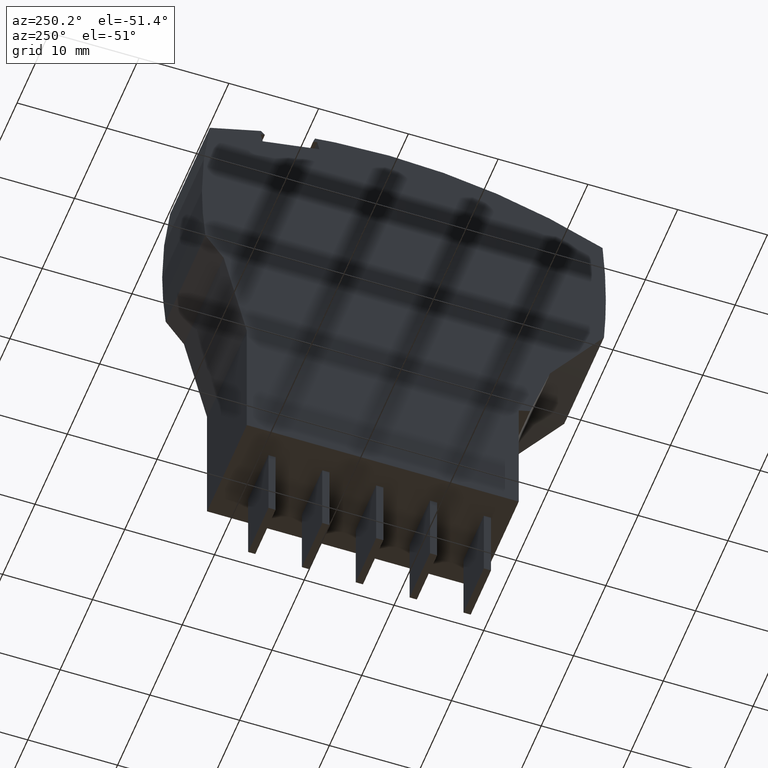
[diagram: clean part render]
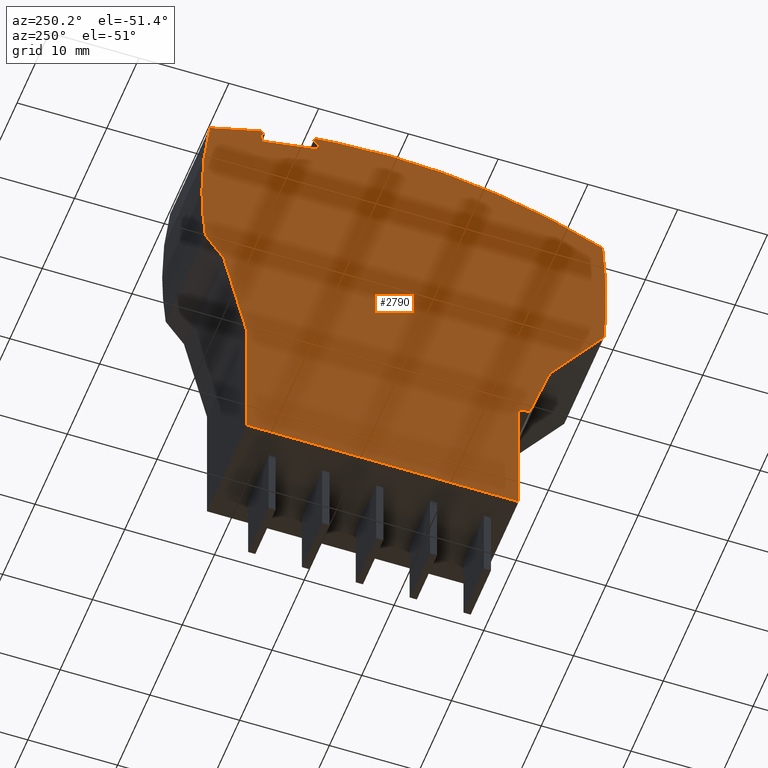
[diagram: same view with one face highlighted and labeled with its STEP entity id]
A machine part, auxiliary view. The second image highlights one B-rep face of the part: STEP entity #2790.
In plain terms, the highlighted planar face has unit normal (1, 0, 0).
Its self-contained STEP definition (entity closure, byte-faithful):
#120=CARTESIAN_POINT('',(-19.8336208526797,37.8042175914864,
53.6700000001206));
#130=VERTEX_POINT('',#120);
#280=CARTESIAN_POINT('',(-14.1362190122504,39.688519976563,
53.6700000001206));
#290=VERTEX_POINT('',#280);
#320=CARTESIAN_POINT('',(-19.8336208526797,37.8042175914864,
53.6700000001206));
#330=DIRECTION('',(0.949422155246101,0.314002501785972,0.));
#340=VECTOR('',#330,1.);
#350=LINE('',#320,#340);
#360=EDGE_CURVE('',#130,#290,#350,.T.);
#410=CARTESIAN_POINT('',(0.182167226154589,21.7394412001866,
53.6700000001206));
#420=DIRECTION('',(0.,0.,-1.));
#430=DIRECTION('',(-1.,1.11123366772477E-12,0.));
#440=AXIS2_PLACEMENT_3D('',#410,#420,#430);
#450=PLANE('',#440);
#460=CARTESIAN_POINT('',(24.8300921415137,21.7394412001592,
53.6700000001206));
#470=DIRECTION('',(0.0630914327902522,-0.99800775102625,-0.));
#480=VECTOR('',#470,1.);
#490=LINE('',#460,#480);
#500=CARTESIAN_POINT('',(23.9179771729861,36.1676728658394,
53.6700000001206));
#510=VERTEX_POINT('',#500);
#520=CARTESIAN_POINT('',(24.1936064860476,31.8076483953254,
53.6700000001206));
#530=VERTEX_POINT('',#520);
#540=EDGE_CURVE('',#510,#530,#490,.T.);
#550=ORIENTED_EDGE('',*,*,#540,.F.);
#560=CARTESIAN_POINT('',(24.1936064860476,31.8076483953255,
53.6700000001206));
#570=DIRECTION('',(0.0210429014288442,-0.999778573634911,-0.));
#580=VECTOR('',#570,1.);
#590=LINE('',#560,#580);
#600=CARTESIAN_POINT('',(24.2821672261611,27.5999999999697,
53.6700000001206));
#610=VERTEX_POINT('',#600);
#620=EDGE_CURVE('',#530,#610,#590,.T.);
#630=ORIENTED_EDGE('',*,*,#620,.F.);
#640=CARTESIAN_POINT('',(24.2821672261611,27.5999999999697,
53.6700000001206));
#650=DIRECTION('',(-0.0160067280420585,-0.999871884121855,0.));
#660=VECTOR('',#650,1.);
#670=LINE('',#640,#660);
#680=CARTESIAN_POINT('',(24.2309241576422,24.3990645349846,
53.6700000001206));
#690=VERTEX_POINT('',#680);
#700=EDGE_CURVE('',#610,#690,#670,.T.);
#710=ORIENTED_EDGE('',*,*,#700,.F.);
#720=CARTESIAN_POINT('',(24.2309241576422,24.3990645349846,
53.6700000001206));
#730=DIRECTION('',(-0.0480037794467058,-0.998847154052527,0.));
#740=VECTOR('',#730,1.);
#750=LINE('',#720,#740);
#760=CARTESIAN_POINT('',(24.077247469134,21.2014095851065,
53.6700000001206));
#770=VERTEX_POINT('',#760);
#780=EDGE_CURVE('',#690,#770,#750,.T.);
#790=ORIENTED_EDGE('',*,*,#780,.F.);
#800=CARTESIAN_POINT('',(18.4679302965551,13.1904744459233,
53.6700000001206));
#810=DIRECTION('',(-0.573576436351989,-0.819152044288332,0.));
#820=VECTOR('',#810,1.);
#830=LINE('',#800,#820);
#840=CARTESIAN_POINT('',(18.0708839005865,12.6234334269378,
53.6700000001206));
#850=VERTEX_POINT('',#840);
#860=EDGE_CURVE('',#770,#850,#830,.T.);
#870=ORIENTED_EDGE('',*,*,#860,.F.);
#880=CARTESIAN_POINT('',(17.5006653642924,10.7583326343994,
53.6700000001206));
#890=DIRECTION('',(0.292371704723776,0.956304755962718,0.));
#900=VECTOR('',#890,1.);
#910=LINE('',#880,#900);
#920=CARTESIAN_POINT('',(15.8466181170123,5.34818786455774,
53.6700000001206));
#930=VERTEX_POINT('',#920);
#940=EDGE_CURVE('',#930,#850,#910,.T.);
#950=ORIENTED_EDGE('',*,*,#940,.T.);
#960=CARTESIAN_POINT('',(0.182167226130205,-0.204116970032334,
53.6700000001206));
#970=DIRECTION('',(0.942542393209373,0.334086571120643,0.));
#980=VECTOR('',#970,1.);
#990=LINE('',#960,#980);
#1000=CARTESIAN_POINT('',(14.5821672261359,4.89999999998335,
53.6700000001206));
#1010=VERTEX_POINT('',#1000);
#1020=EDGE_CURVE('',#1010,#930,#990,.T.);
#1030=ORIENTED_EDGE('',*,*,#1020,.T.);
#1040=CARTESIAN_POINT('',(14.5821672261189,-10.4000000000194,
53.6700000001206));
#1050=DIRECTION('',(1.11123366772477E-12,1.,0.));
#1060=VECTOR('',#1050,1.);
#1070=LINE('',#1040,#1060);
#1080=CARTESIAN_POINT('',(14.5821672261189,-10.4000000000194,
53.6700000001206));
#1090=VERTEX_POINT('',#1080);
#1100=EDGE_CURVE('',#1090,#1010,#1070,.T.);
#1110=ORIENTED_EDGE('',*,*,#1100,.T.);
#1120=CARTESIAN_POINT('',(-5.08695122850913,-10.3999999999975,
53.6700000001206));
#1130=DIRECTION('',(-1.,1.11123366772477E-12,0.));
#1140=VECTOR('',#1130,1.);
#1150=LINE('',#1120,#1140);
#1160=CARTESIAN_POINT('',(-15.7178327738811,-10.3999999999857,
53.6700000001206));
#1170=VERTEX_POINT('',#1160);
#1180=EDGE_CURVE('',#1090,#1170,#1150,.T.);
#1190=ORIENTED_EDGE('',*,*,#1180,.F.);
#1200=CARTESIAN_POINT('',(-15.7178327738753,-5.17654999421573,
53.6700000001206));
#1210=DIRECTION('',(1.11123366772477E-12,1.,0.));
#1220=VECTOR('',#1210,1.);
#1230=LINE('',#1200,#1220);
#1240=CARTESIAN_POINT('',(-15.7178327738635,5.43640232414893,
53.6700000001206));
#1250=VERTEX_POINT('',#1240);
#1260=EDGE_CURVE('',#1170,#1250,#1230,.T.);
#1270=ORIENTED_EDGE('',*,*,#1260,.F.);
#1280=CARTESIAN_POINT('',(-18.2951523757511,16.6000000000172,
53.6700000001206));
#1290=DIRECTION('',(0.224951054342823,-0.974370064785476,-0.));
#1300=VECTOR('',#1290,1.);
#1310=LINE('',#1280,#1300);
#1320=CARTESIAN_POINT('',(-18.2951523757229,16.5999999999769,
53.6700000001206));
#1330=VERTEX_POINT('',#1320);
#1340=EDGE_CURVE('',#1330,#1250,#1310,.T.);
#1350=ORIENTED_EDGE('',*,*,#1340,.T.);
#1360=CARTESIAN_POINT('',(-18.3074513060611,16.6175646928221,
53.6700000001206));
#1370=DIRECTION('',(-0.573576436350101,0.819152044289654,0.));
#1380=VECTOR('',#1370,1.);
#1390=LINE('',#1360,#1380);
#1400=CARTESIAN_POINT('',(-20.3274267066365,19.5023885348315,
53.6700000001206));
#1410=VERTEX_POINT('',#1400);
#1420=EDGE_CURVE('',#1330,#1410,#1390,.T.);
#1430=ORIENTED_EDGE('',*,*,#1420,.F.);
#1440=CARTESIAN_POINT('',(-20.6201615225842,23.1459765328589,
53.6700000001206));
#1450=DIRECTION('',(0.0800844049892403,-0.996788085842482,-0.));
#1460=VECTOR('',#1450,1.);
#1470=LINE('',#1440,#1460);
#1480=CARTESIAN_POINT('',(-20.6201615225842,23.1459765328589,
53.6700000001206));
#1490=VERTEX_POINT('',#1480);
#1500=EDGE_CURVE('',#1490,#1410,#1470,.T.);
#1510=ORIENTED_EDGE('',*,*,#1500,.T.);
#1520=CARTESIAN_POINT('',(-20.7178327738363,26.8000000000162,
53.6700000001206));
#1530=DIRECTION('',(0.026720238300827,-0.999642950690469,-0.));
#1540=VECTOR('',#1530,1.);
#1550=LINE('',#1520,#1540);
#1560=CARTESIAN_POINT('',(-20.7178327738363,26.8000000000162,
53.6700000001206));
#1570=VERTEX_POINT('',#1560);
#1580=EDGE_CURVE('',#1570,#1490,#1550,.T.);
#1590=ORIENTED_EDGE('',*,*,#1580,.T.);
#1600=CARTESIAN_POINT('',(-20.5012942807779,32.2383432156127,
53.6700000001206));
#1610=DIRECTION('',(-0.0397854712329645,-0.999208244701159,0.));
#1620=VECTOR('',#1610,1.);
#1630=LINE('',#1600,#1620);
#1640=CARTESIAN_POINT('',(-20.5012942807779,32.2383432156127,
53.6700000001206));
#1650=VERTEX_POINT('',#1640);
#1660=EDGE_CURVE('',#1650,#1570,#1630,.T.);
#1670=ORIENTED_EDGE('',*,*,#1660,.T.);
#1680=CARTESIAN_POINT('',(-21.7607258501062,21.739441200211,
53.6700000001206));
#1690=DIRECTION('',(-0.119104510597663,-0.992881722842802,0.));
#1700=VECTOR('',#1690,1.);
#1710=LINE('',#1680,#1700);
#1720=EDGE_CURVE('',#130,#1650,#1710,.T.);
#1730=ORIENTED_EDGE('',*,*,#1720,.T.);
#1740=ORIENTED_EDGE('',*,*,#360,.F.);
#1750=CARTESIAN_POINT('',(1.88526559939443,21.8948586607829,
53.6700000001206));
#1760=DIRECTION('',(-0.669130606360021,0.743144825476347,0.));
#1770=VECTOR('',#1760,1.);
#1780=LINE('',#1750,#1770);
#1790=CARTESIAN_POINT('',(-13.7055255886619,39.2101864702726,
53.6700000001206));
#1800=VERTEX_POINT('',#1790);
#1810=EDGE_CURVE('',#1800,#290,#1780,.T.);
#1820=ORIENTED_EDGE('',*,*,#1810,.T.);
#1830=CARTESIAN_POINT('',(0.182167226177283,42.1621067047492,
53.6700000001206));
#1840=DIRECTION('',(-0.978147600730583,-0.207911690832918,0.));
#1850=VECTOR('',#1840,1.);
#1860=LINE('',#1830,#1850);
#1870=CARTESIAN_POINT('',(-14.1701456990078,39.1114284171272,
53.6700000001206));
#1880=VERTEX_POINT('',#1870);
#1890=EDGE_CURVE('',#1800,#1880,#1860,.T.);
#1900=ORIENTED_EDGE('',*,*,#1890,.F.);
#1910=CARTESIAN_POINT('',(-10.4776158268011,21.7394412001984,
53.6700000001206));
#1920=DIRECTION('',(0.2079116908178,-0.978147600733797,-0.));
#1930=VECTOR('',#1920,1.);
#1940=LINE('',#1910,#1930);
#1950=CARTESIAN_POINT('',(-13.9414428391099,38.0354660563281,
53.6700000001206));
#1960=VERTEX_POINT('',#1950);
#1970=EDGE_CURVE('',#1880,#1960,#1940,.T.);
#1980=ORIENTED_EDGE('',*,*,#1970,.F.);
#1990=CARTESIAN_POINT('',(0.182167226176034,41.037532050174,
53.6700000001206));
#2000=DIRECTION('',(0.978147600733797,0.207911690817799,0.));
#2010=VECTOR('',#2000,1.);
#2020=LINE('',#1990,#2010);
#2030=CARTESIAN_POINT('',(-7.63239081437997,39.3764964621022,
53.6700000001206));
#2040=VERTEX_POINT('',#2030);
#2050=EDGE_CURVE('',#1960,#2040,#2020,.T.);
#2060=ORIENTED_EDGE('',*,*,#2050,.F.);
#2070=CARTESIAN_POINT('',(-3.88351898992322,21.7394412001911,
53.6700000001206));
#2080=DIRECTION('',(-0.207911690817799,0.978147600733797,0.));
#2090=VECTOR('',#2080,1.);
#2100=LINE('',#2070,#2090);
#2110=CARTESIAN_POINT('',(-7.86109367427783,40.4524588229013,
53.6700000001206));
#2120=VERTEX_POINT('',#2110);
#2130=EDGE_CURVE('',#2040,#2120,#2100,.T.);
#2140=ORIENTED_EDGE('',*,*,#2130,.F.);
#2150=CARTESIAN_POINT('',(0.182167226177283,42.1621067045173,
53.6700000001206));
#2160=DIRECTION('',(-0.978147600733797,-0.2079116908178,0.));
#2170=VECTOR('',#2160,1.);
#2180=LINE('',#2150,#2170);
#2190=CARTESIAN_POINT('',(-8.32571378462792,40.3537007697626,
53.6700000001206));
#2200=VERTEX_POINT('',#2190);
#2210=EDGE_CURVE('',#2120,#2200,#2180,.T.);
#2220=ORIENTED_EDGE('',*,*,#2210,.F.);
#2230=CARTESIAN_POINT('',(-14.3233551554817,21.894858660801,
53.6700000001206));
#2240=DIRECTION('',(-0.309016994374891,-0.951056516295172,0.));
#2250=VECTOR('',#2240,1.);
#2260=LINE('',#2230,#2250);
#2270=CARTESIAN_POINT('',(-8.12681152849085,40.9658589689828,
53.6700000001206));
#2280=VERTEX_POINT('',#2270);
#2290=EDGE_CURVE('',#2280,#2200,#2260,.T.);
#2300=ORIENTED_EDGE('',*,*,#2290,.T.);
#2310=CARTESIAN_POINT('',(-8.12681152849085,40.9658589689828,
53.6700000001206));
#2320=DIRECTION('',(0.991337247976761,0.131341009490039,0.));
#2330=VECTOR('',#2320,1.);
#2340=LINE('',#2310,#2330);
#2350=CARTESIAN_POINT('',(-5.87324549721044,41.2644310624907,
53.6700000001206));
#2360=VERTEX_POINT('',#2350);
#2370=EDGE_CURVE('',#2280,#2360,#2340,.T.);
#2380=ORIENTED_EDGE('',*,*,#2370,.F.);
#2390=CARTESIAN_POINT('',(-5.87324549721044,41.2644310624907,
53.6700000001206));
#2400=DIRECTION('',(0.998468041018534,0.055331465411738,0.));
#2410=VECTOR('',#2400,1.);
#2420=LINE('',#2390,#2410);
#2430=CARTESIAN_POINT('',(0.182167226181921,41.5999999999966,
53.6700000001206));
#2440=VERTEX_POINT('',#2430);
#2450=EDGE_CURVE('',#2360,#2440,#2420,.T.);
#2460=ORIENTED_EDGE('',*,*,#2450,.F.);
#2470=CARTESIAN_POINT('',(0.182167226181884,41.5999999999966,
53.6700000001206));
#2480=DIRECTION('',(0.998459954034796,-0.0554772042269052,-0.));
#2490=VECTOR('',#2480,1.);
#2500=LINE('',#2470,#2490);
#2510=CARTESIAN_POINT('',(6.21214467764369,41.2649577289405,
53.6700000001206));
#2520=VERTEX_POINT('',#2510);
#2530=EDGE_CURVE('',#2440,#2520,#2500,.T.);
#2540=ORIENTED_EDGE('',*,*,#2530,.F.);
#2550=CARTESIAN_POINT('',(6.21214467764369,41.2649577289405,
53.6700000001206));
#2560=DIRECTION('',(0.986230427358959,-0.165376975880454,-0.));
#2570=VECTOR('',#2560,1.);
#2580=LINE('',#2550,#2570);
#2590=CARTESIAN_POINT('',(12.1685033001368,40.266160136693,
53.6700000001206));
#2600=VERTEX_POINT('',#2590);
#2610=EDGE_CURVE('',#2520,#2600,#2580,.T.);
#2620=ORIENTED_EDGE('',*,*,#2610,.F.);
#2630=CARTESIAN_POINT('',(12.1685033001368,40.266160136693,
53.6700000001206));
#2640=DIRECTION('',(0.961939620185161,-0.273262085035644,-0.));
#2650=VECTOR('',#2640,1.);
#2660=LINE('',#2630,#2650);
#2670=CARTESIAN_POINT('',(17.9787409772999,38.6156223805824,
53.6700000001206));
#2680=VERTEX_POINT('',#2670);
#2690=EDGE_CURVE('',#2600,#2680,#2660,.T.);
#2700=ORIENTED_EDGE('',*,*,#2690,.F.);
#2710=CARTESIAN_POINT('',(17.9787409772999,38.6156223805824,
53.6700000001206));
#2720=DIRECTION('',(0.924547514122095,-0.381066784344497,-0.));
#2730=VECTOR('',#2720,1.);
#2740=LINE('',#2710,#2730);
#2750=EDGE_CURVE('',#2680,#510,#2740,.T.);
#2760=ORIENTED_EDGE('',*,*,#2750,.F.);
#2770=EDGE_LOOP('',(#2760,#2700,#2620,#2540,#2460,#2380,#2300,#2220,
#2140,#2060,#1980,#1900,#1820,#1740,#1730,#1670,#1590,#1510,#1430,#1350,
#1270,#1190,#1110,#1030,#950,#870,#790,#710,#630,#550));
#2780=FACE_OUTER_BOUND('',#2770,.T.);
#2790=ADVANCED_FACE('',(#2780),#450,.F.);